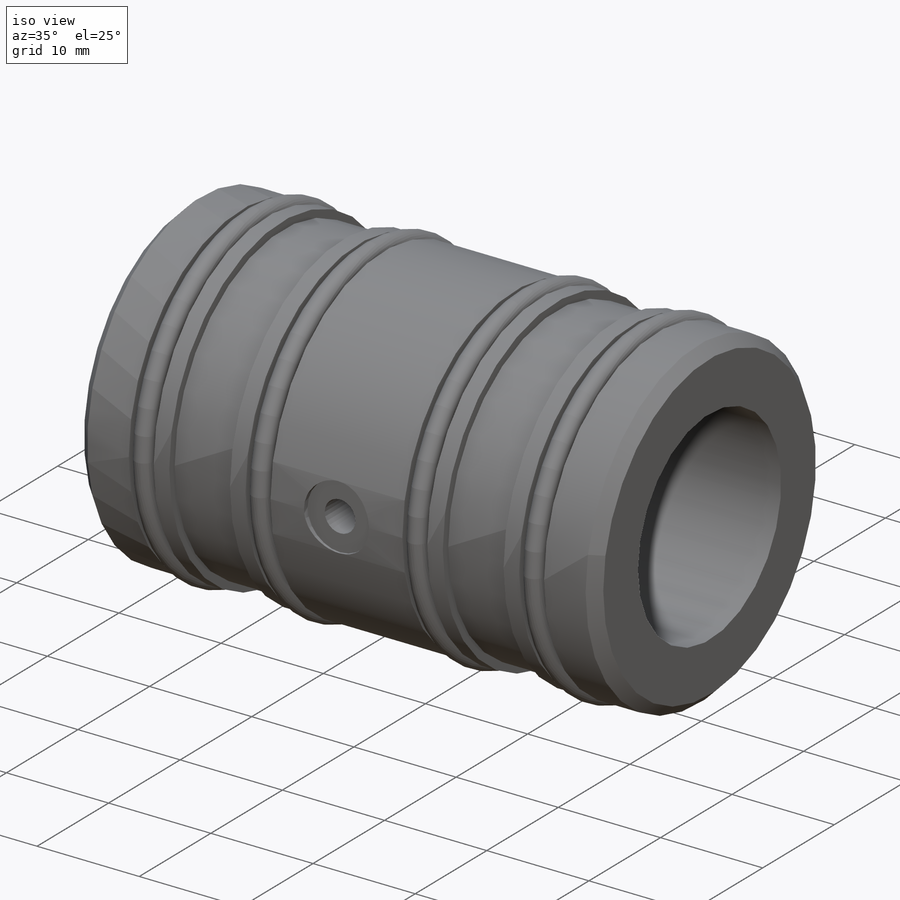
[diagram: iso view]
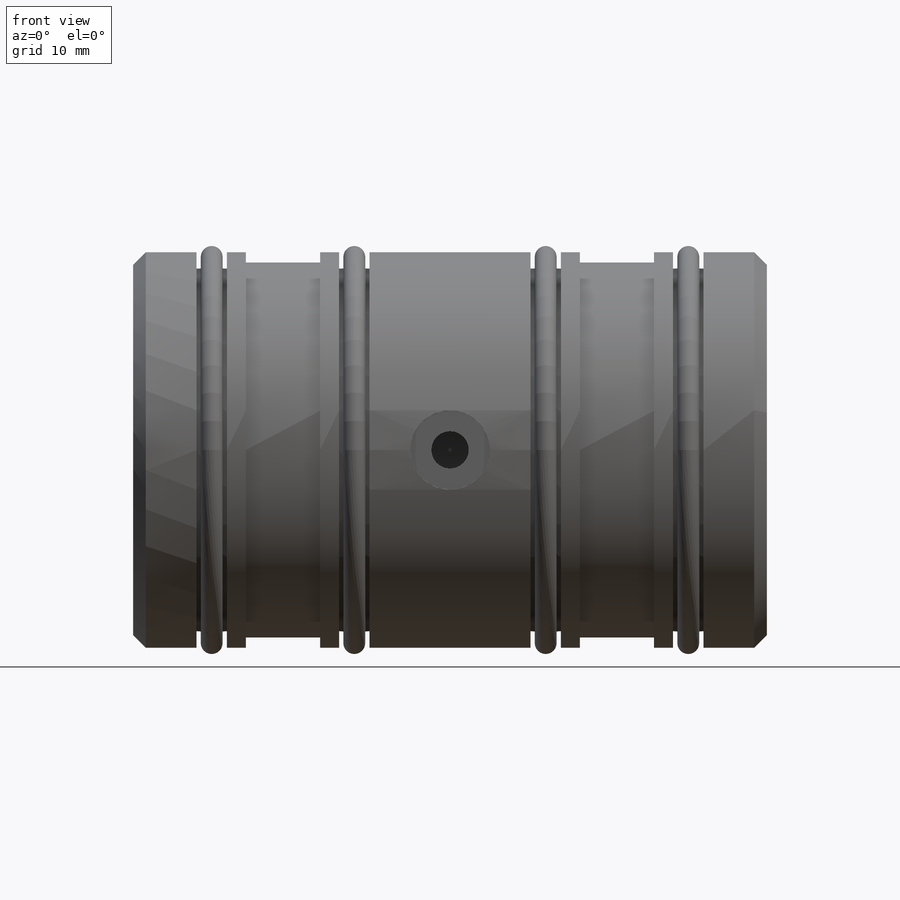
[diagram: front view]
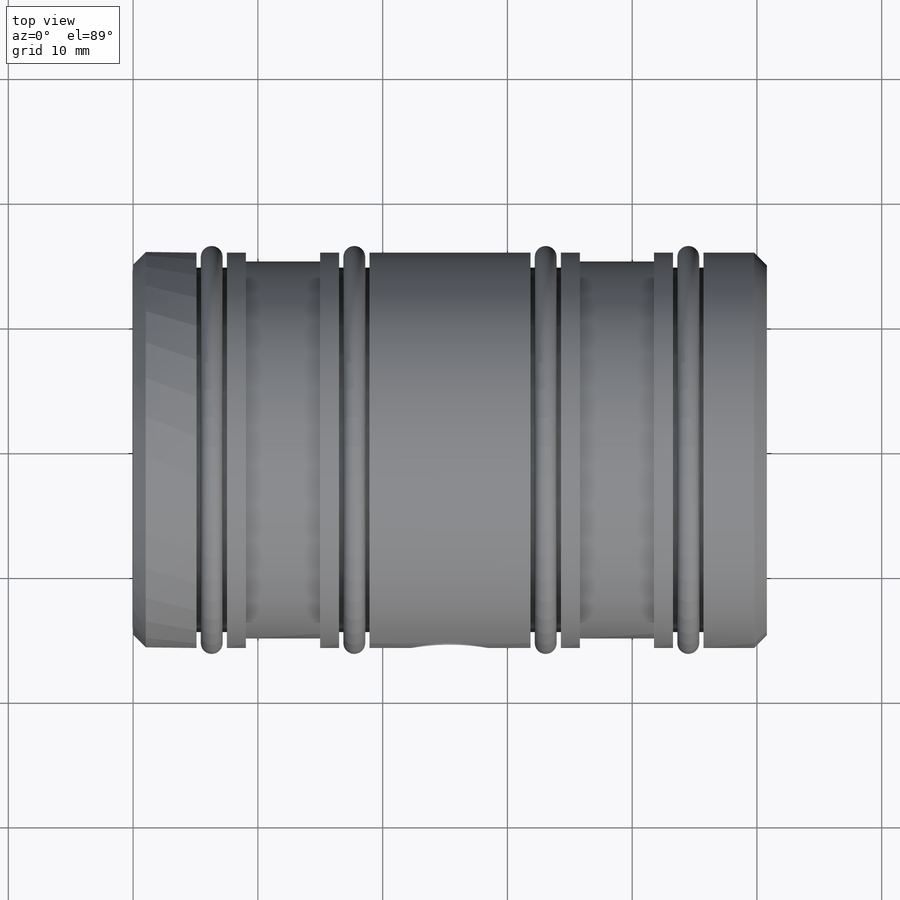
[diagram: top view]
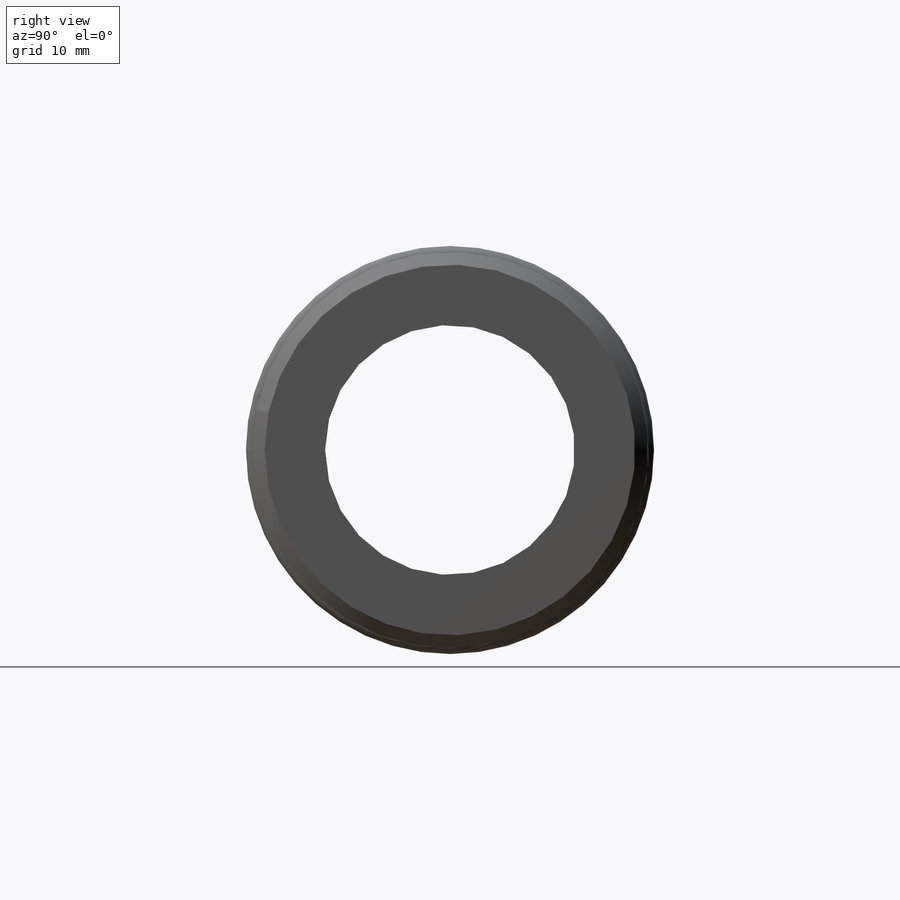
[diagram: right view]
SOLIDWORKS PART (.sldprt)
format: sldprt  version: not decoded by parser v0  size: 436,224 bytes
history: native  units: mm
features: sketch x6, revolve x2, hole x2, material x1, chamfer x1, plane x1 + 1 further entry (+15 scaffold rows collapsed)
feature tree (29):
  scaffold x15  (default folders/planes/origin — collapsed)
  material  "Material <not specified>"
  "Design Table"
  sketch  "Sketch1"  dims[Bore ID=20.02mm OAL=50.8mm Moglice groove width=5.944mm O-ring groove width=2.438mm Edge to 1st o-ring groove=5.08mm Edge to 2nd o-ring groove=16.51mm Bushing OD=31.75mm O-ring groove dia=29.21mm D9=~0.79375mm Edge to 3rd o-ring groove=31.85mm edge to 4th o-ring groove=43.28mm Edge to 1st moglice groove=9.042mm Edge to 2nd moglice groove=35.81mm Moglice Groove Dia=30.226mm]
  revolve  "Revolve1"  Angle=360deg
  chamfer  "Chamfer1"  Distance=1.016mm Angle=45deg
  plane  "Plane1"  Offset=7.9121mm
  hole  "3/8 (0.375) Diameter Hole1"  Diameter=6.35mm Depth=0.508mm
  sketch  "3DSketch1"  dims[Edge to air hole=25.4mm]
  sketch  "Sketch2"  dims[hole-wizard template sketch: 47 standard entries collapsed; hole parameters kept: c15.Hole Depth=0.508mm c15.D3=~14.816244mm c15.Drill Angle=180.0deg]
  hole  "Air Hole"  Diameter=2.4892mm Depth=6.35mm
  sketch  "Sketch4"
  sketch  "Sketch3"  dims[hole-wizard template sketch: 30 standard entries collapsed; hole parameters kept: c8.Thread Major Dia.=2.997mm c8.Thread Depth=5.994mm c8.D5=~14.816244mm c8.Drill Angle=118.0deg]
  sketch  "Sketch5"  dims[c1.D1=1.7526mm c1.D2=1.7526mm c1.D6=1.7526mm c2.D2=12.25mm c2.D3=1.2192mm c2.D4=1.22mm c2.D5=1.22mm c2.D6=1.22mm c3.D2=~16.35506mm]
  revolve  "Revolve2"  Angle=360deg
decode coverage: 10 of 11 modeling features carry decoded parameters; 1 rows unclassified (native names shown)
note: ~ marks probable driven/reference dimensions
note: suppression state not decoded; provenance and decode notes live in map.json
